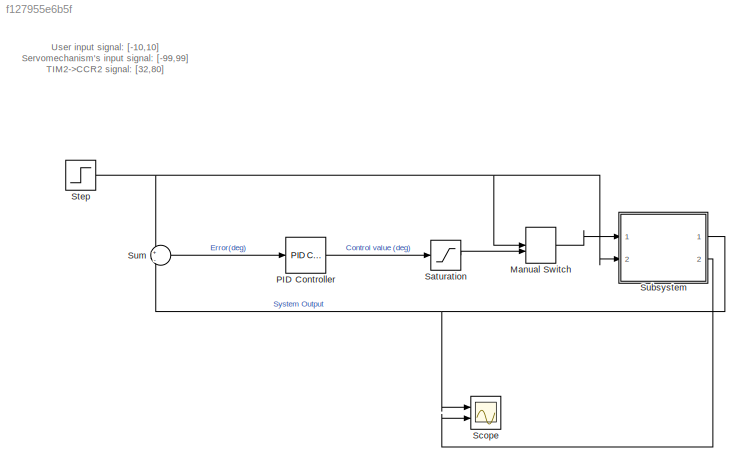
MODEL slx_f127955e6b5f
KIND model
CONFIG AbsTol = auto
CONFIG EnableMultiTasking = off
CONFIG FixedStep = 0.01
CONFIG MaxStep = auto
CONFIG MinStep = auto
CONFIG RelTol = 1e-3
CONFIG SampleTimeConstraint = Unconstrained
CONFIG Solver = ode4
CONFIG SolverName = ode4
CONFIG StartTime = 0.0
CONFIG StopTime = 20.0
BLOCK [ManualSwitch] Manual Switch
  CurrentSetting = 0
BLOCK [Reference] PID Controller  REF=simulink/Continuous/PID Controller
  Ports = [1, 1]
  SourceBlock = simulink/Continuous/PID Controller
  SourceProductBaseCode = SL
  SourceType = PID 1dof
BLOCK [Saturate] Saturation
  LowerLimit = -99
  UpperLimit = 99
BLOCK [Scope] Scope
  Floating = off
  NumInputPorts = 2
  Ports = [2]
  ScopeSpecificationString = Simulink.scopes.TimeScopeBlockCfg('CurrentConfiguration', extmgr.ConfigurationSet(extmgr.Configuration('Core','General UI',true),extmgr.Configuration('Core','Source UI',true),extmgr.Configuration('Sources','WiredSimulink',true),extmgr.Configuration('Visuals','Time Domain',true,'SerializedDisplays',{struct('MinYLimReal','-5.42821','MaxYLimReal','18.37971','YLabelReal','','MinYLimMag','0.00000','Max...<+1380ch>
BLOCK [Step] Step
  After = 15
  SampleTime = 0
  Time = 3
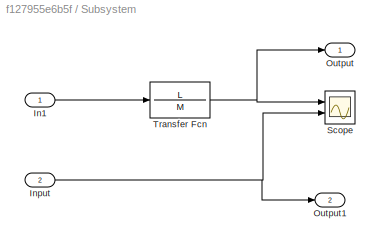
BLOCK [SubSystem] Subsystem
  Ports = [2, 2]
  RequestExecContextInheritance = off
BLOCK [Inport] Subsystem/In1
BLOCK [Inport] Subsystem/Input
  Port = 2
BLOCK [Outport] Subsystem/Output
BLOCK [Outport] Subsystem/Output1
  Port = 2
BLOCK [Scope] Subsystem/Scope
  Floating = off
  NumInputPorts = 2
  Ports = [2]
  ScopeSpecificationString = Simulink.scopes.TimeScopeBlockCfg('CurrentConfiguration', extmgr.ConfigurationSet(extmgr.Configuration('Core','General UI',true),extmgr.Configuration('Core','Source UI',true),extmgr.Configuration('Sources','WiredSimulink',true),extmgr.Configuration('Visuals','Time Domain',true,'SerializedDisplays',{struct('MinYLimReal','-5.42821','MaxYLimReal','18.37971','YLabelReal','','MinYLimMag','0.00000','Max...<+1373ch>
BLOCK [TransferFcn] Subsystem/Transfer Fcn
  Denominator = M
  Numerator = L
BLOCK [Sum] Sum
  Inputs = +|-
  Ports = [2, 1]
ANNOTATION (root): User input signal: [-10,10] Servomechanism's input signal: [-99,99] TIM2->CCR2 signal: [32,80]
LINE Manual Switch:1 -> Subsystem:1
LINE PID Controller:1 -> Saturation:1
LINE Saturation:1 -> Manual Switch:2
NET Step:1 -> Manual Switch:1, Subsystem:2, Sum:1
LINE Subsystem/In1:1 -> Subsystem/Transfer Fcn:1
NET Subsystem/Input:1 -> Subsystem/Output1:1, Subsystem/Scope:2
NET Subsystem/Transfer Fcn:1 -> Subsystem/Output:1, Subsystem/Scope:1
NET Subsystem:1 -> Scope:1, Sum:2
LINE Subsystem:2 -> Scope:2
LINE Sum:1 -> PID Controller:1
note: NET lines group one-source signal fan-out (src -> all destinations, sorted); 1:1 wires keep LINE
